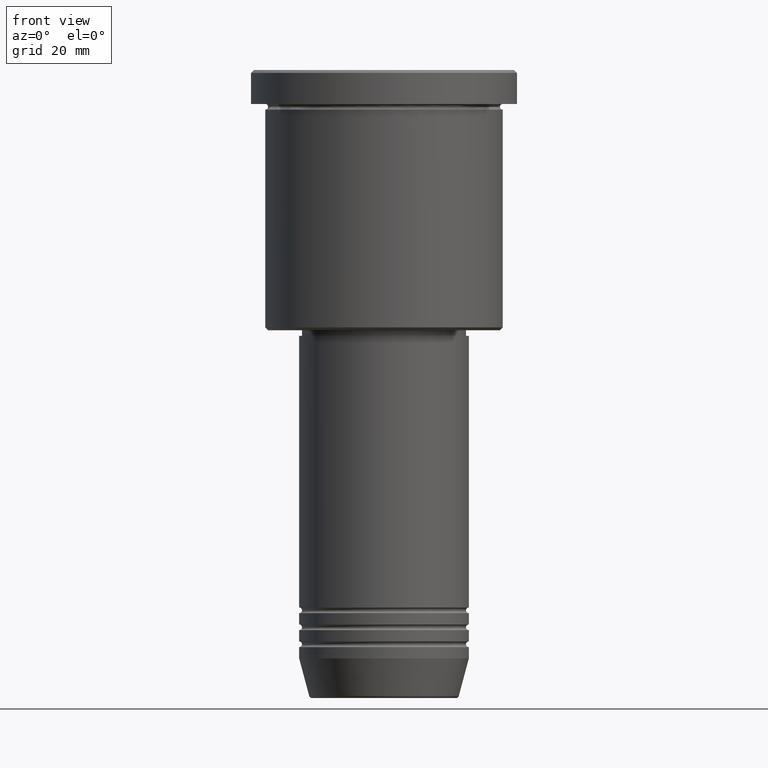
[diagram: clean part render]
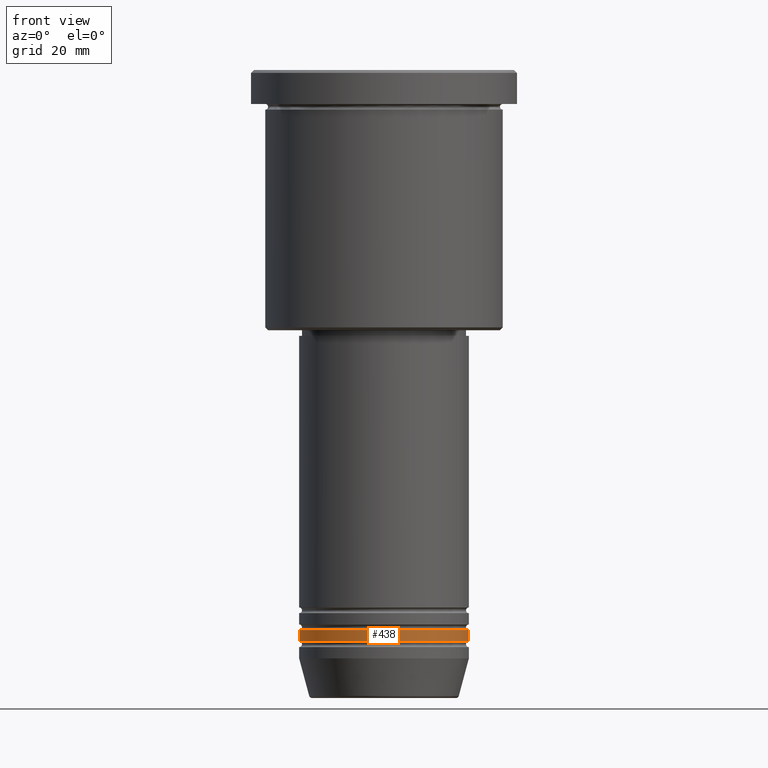
[diagram: same view with one face highlighted and labeled with its STEP entity id]
A machine part, front view. The second image highlights one B-rep face of the part: STEP entity #438.
In plain terms, the highlighted cylindrical surface (partial cylindrical patch) has radius 15 mm, axis along (-0, -0, 1).
Its self-contained STEP definition (entity closure, byte-faithful):
#40 = ORIENTED_EDGE ( 'NONE', *, *, #491, .F. ) ;
#90 = CARTESIAN_POINT ( 'NONE',  ( -15.00000000000000000, 1.836970198721029589E-15, 0.000000000000000000 ) ) ;
#95 = ORIENTED_EDGE ( 'NONE', *, *, #422, .T. ) ;
#96 = CYLINDRICAL_SURFACE ( 'NONE', #106, 15.00000000000000000 ) ;
#102 = LINE ( 'NONE', #90, #1036 ) ;
#106 = AXIS2_PLACEMENT_3D ( 'NONE', #299, #664, #195 ) ;
#134 = EDGE_CURVE ( 'NONE', #743, #503, #1057, .T. ) ;
#164 = VERTEX_POINT ( 'NONE', #393 ) ;
#170 = ORIENTED_EDGE ( 'NONE', *, *, #134, .T. ) ;
#172 = DIRECTION ( 'NONE',  ( -0.000000000000000000, -0.000000000000000000, 1.000000000000000000 ) ) ;
#186 = AXIS2_PLACEMENT_3D ( 'NONE', #467, #390, #828 ) ;
#195 = DIRECTION ( 'NONE',  ( 1.000000000000000000, 0.000000000000000000, 0.000000000000000000 ) ) ;
#244 = EDGE_CURVE ( 'NONE', #743, #415, #102, .T. ) ;
#299 = CARTESIAN_POINT ( 'NONE',  ( 0.000000000000000000, 0.000000000000000000, 0.000000000000000000 ) ) ;
#390 = DIRECTION ( 'NONE',  ( -0.000000000000000000, -0.000000000000000000, 1.000000000000000000 ) ) ;
#393 = CARTESIAN_POINT ( 'NONE',  ( 15.00000000000000000, 0.000000000000000000, -98.99999999999998579 ) ) ;
#415 = VERTEX_POINT ( 'NONE', #739 ) ;
#422 = EDGE_CURVE ( 'NONE', #503, #164, #996, .T. ) ;
#438 = ADVANCED_FACE ( 'NONE', ( #918 ), #96, .T. ) ;
#458 = CARTESIAN_POINT ( 'NONE',  ( -15.00000000000000000, 1.836970198721029589E-15, -100.9999999999999716 ) ) ;
#467 = CARTESIAN_POINT ( 'NONE',  ( 0.000000000000000000, 0.000000000000000000, -98.99999999999998579 ) ) ;
#484 = AXIS2_PLACEMENT_3D ( 'NONE', #624, #172, #907 ) ;
#491 = EDGE_CURVE ( 'NONE', #415, #164, #876, .T. ) ;
#503 = VERTEX_POINT ( 'NONE', #563 ) ;
#563 = CARTESIAN_POINT ( 'NONE',  ( 15.00000000000000000, 0.000000000000000000, -100.9999999999999716 ) ) ;
#568 = DIRECTION ( 'NONE',  ( -0.000000000000000000, -0.000000000000000000, 1.000000000000000000 ) ) ;
#589 = EDGE_LOOP ( 'NONE', ( #889, #170, #95, #40 ) ) ;
#624 = CARTESIAN_POINT ( 'NONE',  ( 0.000000000000000000, 0.000000000000000000, -100.9999999999999716 ) ) ;
#664 = DIRECTION ( 'NONE',  ( -0.000000000000000000, -0.000000000000000000, 1.000000000000000000 ) ) ;
#739 = CARTESIAN_POINT ( 'NONE',  ( -15.00000000000000000, 1.836970198721029589E-15, -98.99999999999998579 ) ) ;
#743 = VERTEX_POINT ( 'NONE', #458 ) ;
#820 = CARTESIAN_POINT ( 'NONE',  ( 15.00000000000000000, 0.000000000000000000, 0.000000000000000000 ) ) ;
#828 = DIRECTION ( 'NONE',  ( 1.000000000000000000, 0.000000000000000000, 0.000000000000000000 ) ) ;
#833 = DIRECTION ( 'NONE',  ( -0.000000000000000000, -0.000000000000000000, 1.000000000000000000 ) ) ;
#876 = CIRCLE ( 'NONE', #186, 15.00000000000000000 ) ;
#889 = ORIENTED_EDGE ( 'NONE', *, *, #244, .F. ) ;
#907 = DIRECTION ( 'NONE',  ( 1.000000000000000000, 0.000000000000000000, 0.000000000000000000 ) ) ;
#918 = FACE_OUTER_BOUND ( 'NONE', #589, .T. ) ;
#996 = LINE ( 'NONE', #820, #1019 ) ;
#1019 = VECTOR ( 'NONE', #568, 1000.000000000000000 ) ;
#1036 = VECTOR ( 'NONE', #833, 1000.000000000000000 ) ;
#1057 = CIRCLE ( 'NONE', #484, 15.00000000000000000 ) ;